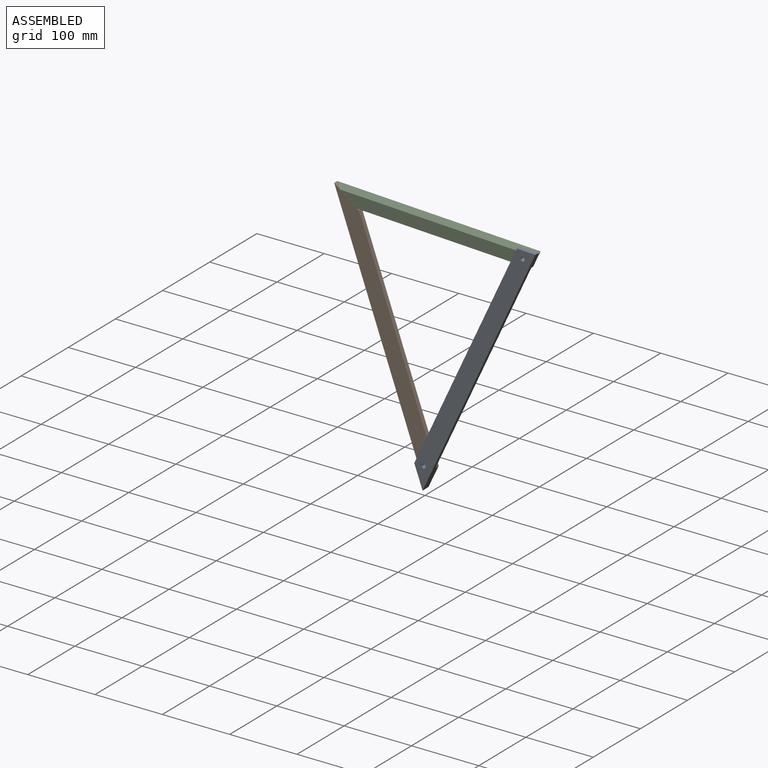
[diagram: assembled view]
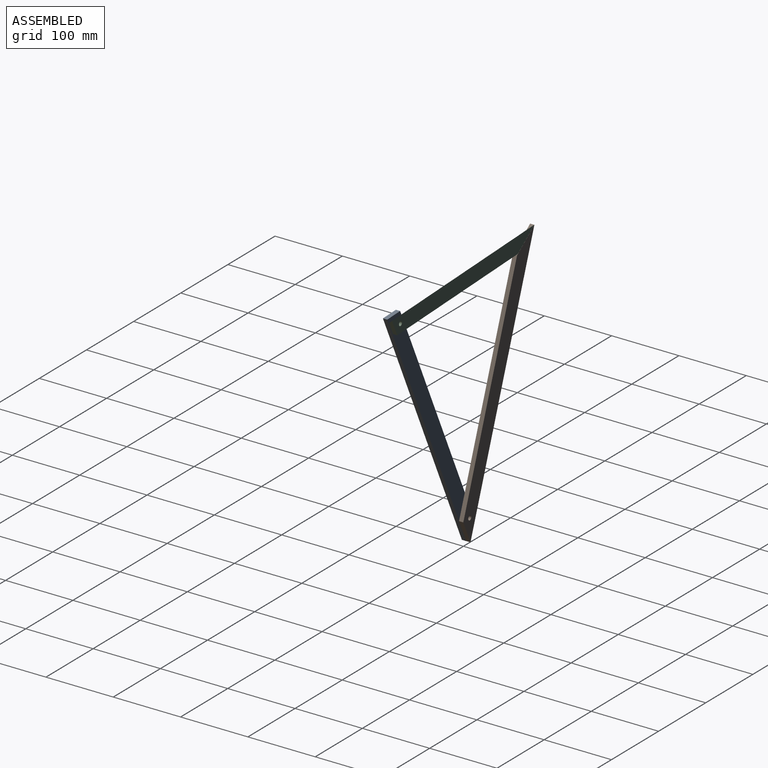
[diagram: assembled view, second angle]
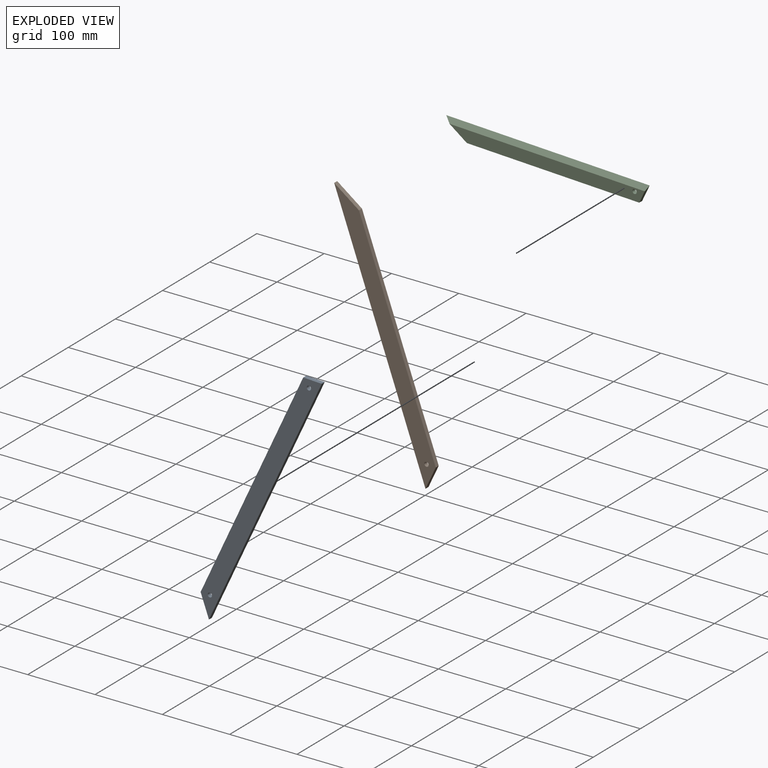
[diagram: exploded view]
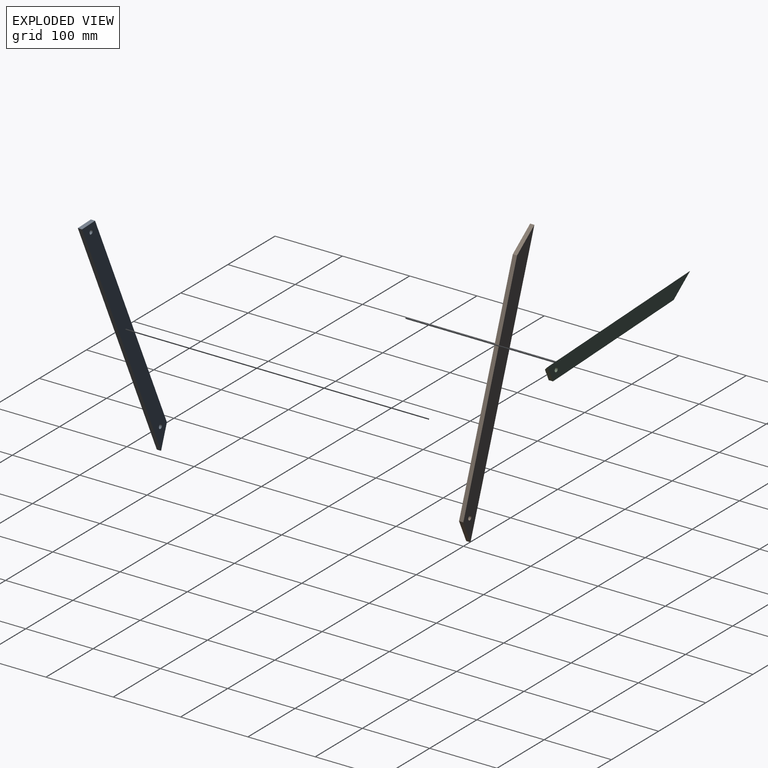
[diagram: exploded view, second angle]
ASSEMBLY  parts=3 mates=2
PART A: 8 faces, bbox 25.4x6.4x398.2 mm
  f0: plane 25.4x10.52mm, normal (-0.38,0,0.92), area 174.6mm2, adj f1,f3,f4,f5
  f1: plane 362.32x6.35mm, normal (-1,0,0), area 2300.7mm2, adj f0,f2,f4,f5
  f2: plane 25.4x25.4mm, normal (-0.71,0,-0.71), area 228.1mm2, adj f1,f3,f4,f5
  f3: plane 398.24x6.35mm, normal (1,0,0), area 2528.8mm2, adj f0,f2,f4,f5
  f4: plane 398.24x25.4mm, normal (0,-1,0), area 9595.8mm2, adj f0,f1,f2,f3,f6,f7
  f5: plane 398.24x25.4mm, normal (0,1,0), area 9595.8mm2, adj f0,f1,f2,f3,f6,f7
  f6: cylinder r=3.17mm len=6.35mm, axis (0,-1,0), area 126.7mm2, adj f4,f5
  f7: cylinder r=3.17mm len=6.35mm, axis (0,-1,0), area 126.7mm2, adj f4,f5
PART B: 7 faces, bbox 25.4x6.4x398.2 mm
  f0: plane 398.24x6.35mm, normal (-1,0,0), area 2528.8mm2, adj f1,f3,f4,f5
  f1: plane 25.4x25.4mm, normal (0.71,0,-0.71), area 228.1mm2, adj f0,f2,f4,f5
  f2: plane 334.83x6.35mm, normal (1,0,0), area 2126.1mm2, adj f1,f3,f4,f5
  f3: plane 38.01x25.4mm, normal (0.83,0,0.56), area 290.3mm2, adj f0,f2,f4,f5
  f4: plane 398.24x25.4mm, normal (0,-1,0), area 9278.3mm2, adj f0,f1,f2,f3,f6
  f5: plane 398.24x25.4mm, normal (0,1,0), area 9278.3mm2, adj f0,f1,f2,f3,f6
  f6: cylinder r=3.17mm len=6.35mm, axis (0,-1,0), area 126.7mm2, adj f4,f5
PART C: 7 faces, bbox 302.4x6.4x24.1 mm
  f0: plane 36.11x24.13mm, normal (-0.56,0,-0.83), area 239.5mm2, adj f1,f3,f4,f6
  f1: plane 256.27x6.35mm, normal (0,0,-1), area 1627.3mm2, adj f0,f2,f3,f4
  f2: plane 24.13x10mm, normal (0.92,0,-0.38), area 144mm2, adj f1,f3,f4,f6
  f3: plane 290.24x17.78mm, normal (0,-1,0), area 4826.8mm2, adj f0,f1,f2,f5,f6
  f4: plane 302.37x24.13mm, normal (0,1,0), area 6708.3mm2, adj f0,f1,f2,f5,f6
  f5: cylinder r=3.17mm len=6.35mm, axis (0,-1,0), area 126.7mm2, adj f3,f4
  f6: plane 302.37x6.35mm, normal (0,-0.71,0.71), area 2660.9mm2, adj f0,f2,f3,f4
PLACE A rot(axis=(0,1,0),24.9deg) t=(74,3.17,159.57)mm
PLACE B rot(axis=(0,-1,0),19.9deg) t=(-55.2,9.53,152.47)mm
PLACE C rot(axis=(0,1,0),2.6deg) t=(26.52,9.53,322.63)mm
MATE revolute B.f6 <-> A.f6  axis (0,-1,0) through (0,3.18,0)mm
MATE revolute C.f5 <-> A.f7  axis (0,-1,0) through (147.09,3.18,317.17)mm
